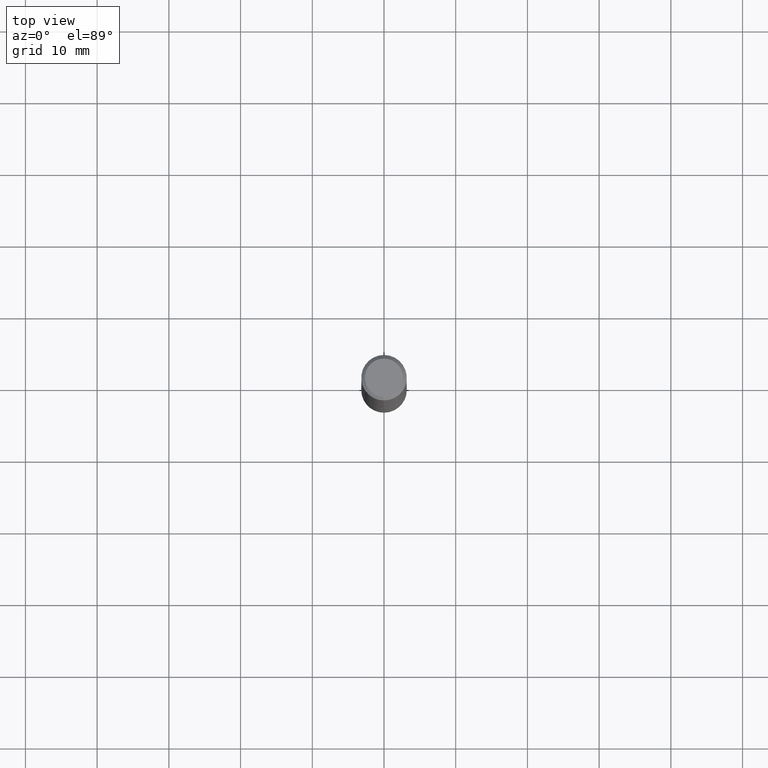
[diagram: clean part render]
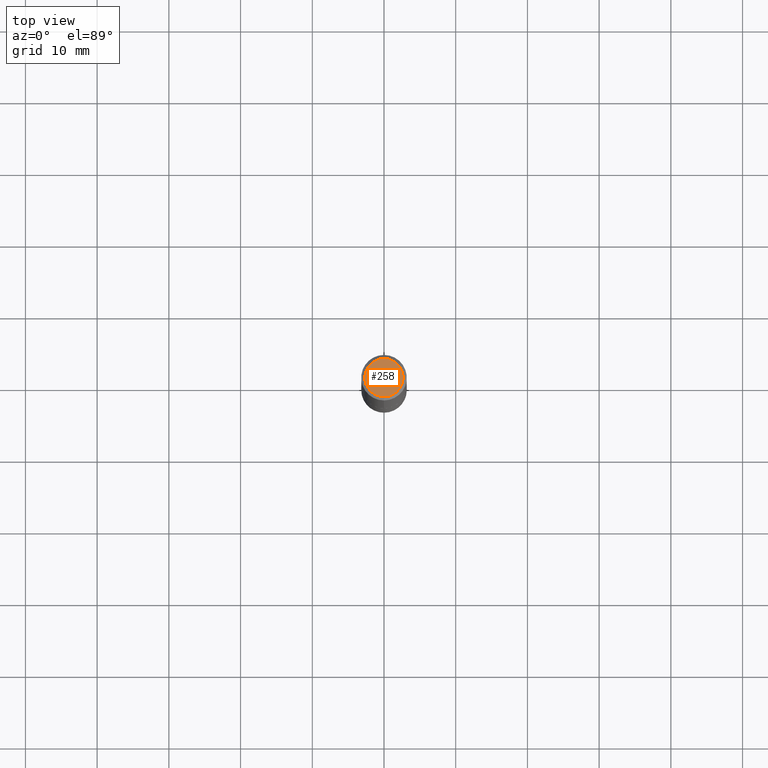
[diagram: same view with one face highlighted and labeled with its STEP entity id]
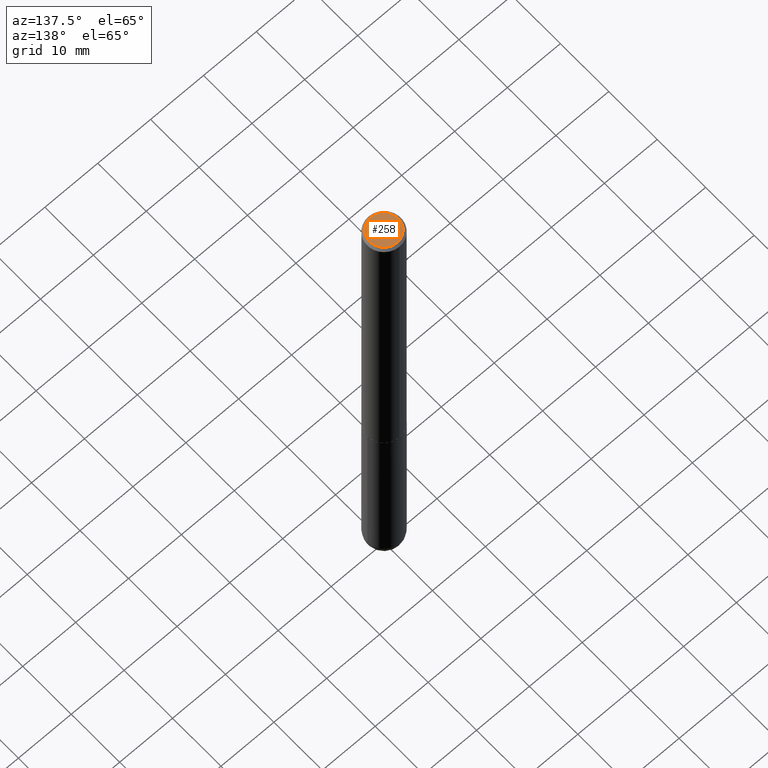
[diagram: same view with one face highlighted and labeled with its STEP entity id]
A machine part, top view. The second image highlights one B-rep face of the part: STEP entity #258.
A second angle (auxiliary view) of the same face is appended — the face is thin or edge-on in the first view.
In plain terms, the highlighted planar face has unit normal (0, -0, -1).
Its self-contained STEP definition (entity closure, byte-faithful):
#16 = PLANE ( 'NONE',  #349 ) ;
#49 = FACE_OUTER_BOUND ( 'NONE', #389, .T. ) ;
#90 = DIRECTION ( 'NONE',  ( -6.982962677686265922E-15, -1.000000000000000000, 3.491237832586588039E-15 ) ) ;
#93 = CIRCLE ( 'NONE', #377, 0.1049999999999997047 ) ;
#116 = DIRECTION ( 'NONE',  ( -2.445638845695268633E-29, 3.491237832586588433E-15, 1.000000000000000000 ) ) ;
#134 = DIRECTION ( 'NONE',  ( 2.445638845695268633E-29, -3.491237832586588039E-15, -1.000000000000000000 ) ) ;
#143 = DIRECTION ( 'NONE',  ( -2.445638845695268633E-29, 3.491237832586588433E-15, 1.000000000000000000 ) ) ;
#144 = ORIENTED_EDGE ( 'NONE', *, *, #392, .T. ) ;
#145 = DIRECTION ( 'NONE',  ( 6.982962677686265922E-15, 1.000000000000000000, -3.491237832586588039E-15 ) ) ;
#215 = DIRECTION ( 'NONE',  ( -6.982962677686265922E-15, -1.000000000000000000, 3.491237832586588039E-15 ) ) ;
#222 = CARTESIAN_POINT ( 'NONE',  ( 8.030407079339197448E-16, 0.1049999999999997047, -5.073561631109876242E-17 ) ) ;
#236 = AXIS2_PLACEMENT_3D ( 'NONE', #352, #116, #90 ) ;
#258 = ADVANCED_FACE ( 'NONE', ( #49 ), #16, .F. ) ;
#285 = CARTESIAN_POINT ( 'NONE',  ( -7.724412264974290657E-45, 1.102687765261900439E-30, 3.158443561104919460E-16 ) ) ;
#305 = CARTESIAN_POINT ( 'NONE',  ( 7.332110811570558550E-16, 0.1049999999999997047, -2.086577943663447909E-16 ) ) ;
#333 = ORIENTED_EDGE ( 'NONE', *, *, #354, .T. ) ;
#344 = VERTEX_POINT ( 'NONE', #222 ) ;
#349 = AXIS2_PLACEMENT_3D ( 'NONE', #305, #134, #145 ) ;
#352 = CARTESIAN_POINT ( 'NONE',  ( -7.724412264974290657E-45, 1.102687765261900439E-30, 3.158443561104919460E-16 ) ) ;
#354 = EDGE_CURVE ( 'NONE', #344, #360, #407, .T. ) ;
#360 = VERTEX_POINT ( 'NONE', #381 ) ;
#377 = AXIS2_PLACEMENT_3D ( 'NONE', #285, #143, #215 ) ;
#381 = CARTESIAN_POINT ( 'NONE',  ( -7.889572697437248320E-16, -0.1049999999999997047, 6.824243285320826606E-16 ) ) ;
#389 = EDGE_LOOP ( 'NONE', ( #333, #144 ) ) ;
#392 = EDGE_CURVE ( 'NONE', #360, #344, #93, .T. ) ;
#407 = CIRCLE ( 'NONE', #236, 0.1049999999999997047 ) ;